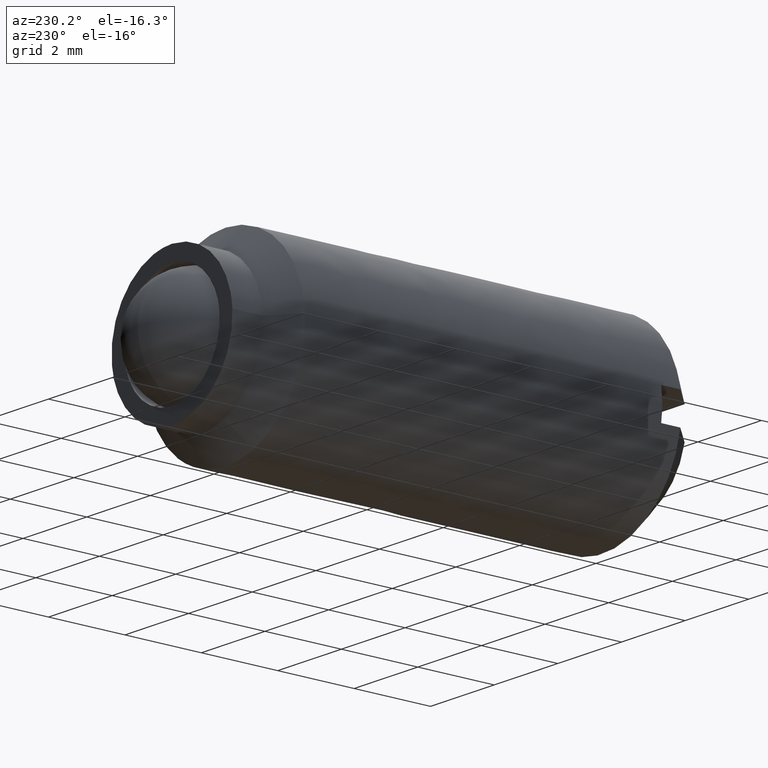
[diagram: clean part render]
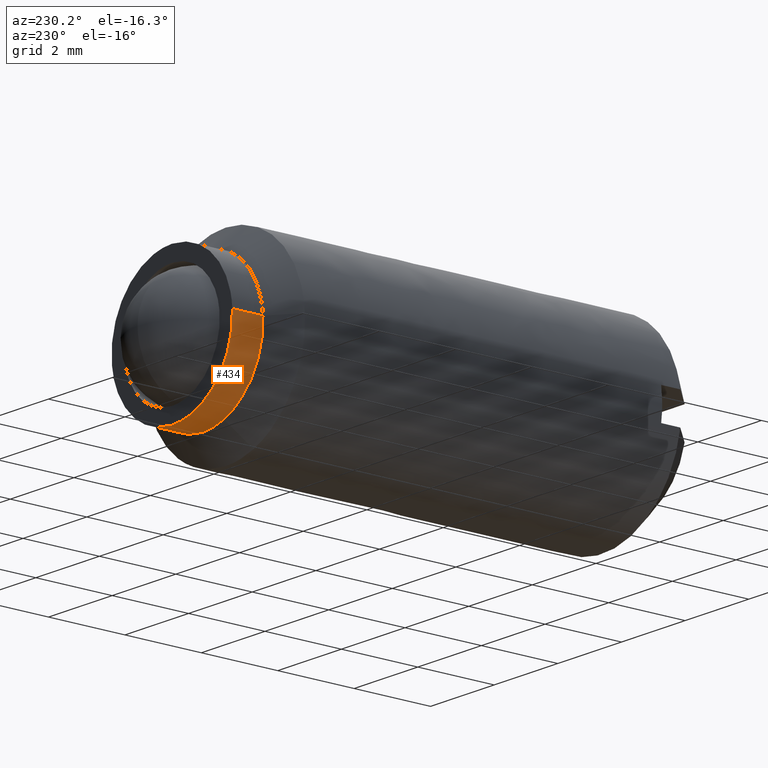
[diagram: same view with one face highlighted and labeled with its STEP entity id]
A machine part, auxiliary view. The second image highlights one B-rep face of the part: STEP entity #434.
In plain terms, the highlighted face is a freeform B-spline surface patch.
Its self-contained STEP definition (entity closure, byte-faithful):
#252=CARTESIAN_POINT('',(1.886718476477220,-0.899999999999935,-0.224261879304770));
#253=VERTEX_POINT('',#252);
#271=CARTESIAN_POINT('',(-1.896456117001057,-0.900000000000000,0.115992225124233));
#272=VERTEX_POINT('',#271);
#286=CARTESIAN_POINT('',(-1.896456117002499,-1.700000000003540,0.115992225129656));
#287=VERTEX_POINT('',#286);
#288=CARTESIAN_POINT('',(-1.896456117001057,-0.900000000000000,0.115992225124233));
#289=CARTESIAN_POINT('',(-1.896456117002499,-1.700000000003540,0.115992225129656));
#290=QUASI_UNIFORM_CURVE('',1,(#288,#289),.UNSPECIFIED.,.F.,.U.);
#291=EDGE_CURVE('',#272,#287,#290,.T.);
#308=CARTESIAN_POINT('',(1.886718471939577,-1.700000000000000,-0.224261917480567));
#309=VERTEX_POINT('',#308);
#325=CARTESIAN_POINT('',(1.886718476477220,-0.899999999999935,-0.224261879304770));
#326=CARTESIAN_POINT('',(1.886718471939577,-1.700000000000000,-0.224261917480567));
#327=QUASI_UNIFORM_CURVE('',1,(#325,#326),.UNSPECIFIED.,.F.,.U.);
#328=EDGE_CURVE('',#253,#309,#327,.T.);
#333=CARTESIAN_POINT('',(-1.894857721785848,-0.880000000000000,0.142125755886582));
#334=CARTESIAN_POINT('',(-1.895654631978397,-0.879999999999999,0.129096389410968));
#335=CARTESIAN_POINT('',(-2.012448342117775,-0.880000000000000,-1.780463891885319));
#336=CARTESIAN_POINT('',(-0.115992225116228,-0.880000000000000,-1.896456117001548));
#337=CARTESIAN_POINT('',(1.674932632595051,-0.880000000000000,-2.005993773791804));
#338=CARTESIAN_POINT('',(1.888303844454935,-0.880000000000000,-0.210924346309455));
#339=CARTESIAN_POINT('',(1.889881066098256,-0.880000000000000,-0.197655347518057));
#340=CARTESIAN_POINT('',(-1.894857721785848,-1.720500000000001,0.142125755886582));
#341=CARTESIAN_POINT('',(-1.895654631978397,-1.720500000000000,0.129096389410968));
#342=CARTESIAN_POINT('',(-2.012448342117775,-1.720500000000000,-1.780463891885319));
#343=CARTESIAN_POINT('',(-0.115992225116228,-1.720500000000000,-1.896456117001548));
#344=CARTESIAN_POINT('',(1.674932632595051,-1.720500000000000,-2.005993773791804));
#345=CARTESIAN_POINT('',(1.888303844454935,-1.720500000000000,-0.210924346309455));
#346=CARTESIAN_POINT('',(1.889881066098256,-1.720500000000001,-0.197655347518057));
#354=(BOUNDED_SURFACE()B_SPLINE_SURFACE(2,1,((#333,#340),(#334,#341),(#335,#342),(#336,#343),(#337,#344),(#338,#345),(#339,#346)),.UNSPECIFIED.,.F.,.F.,.U.)B_SPLINE_SURFACE_WITH_KNOTS((3,1,2,1,3),(2,2),(0.0,0.030850643711267,3.178873717746789,6.200975868820890,6.231830164430668),(0.0,1.0),.UNSPECIFIED.)GEOMETRIC_REPRESENTATION_ITEM()RATIONAL_B_SPLINE_SURFACE(((1.005740710361107,1.005740710361107),(1.002870355180554,1.002870355180554),(0.707106781186548,0.707106781186548),(1.0,1.0),(0.718822509939086,0.718822509939086),(0.980146840153292,0.980146840153292),(0.982787879511457,0.982787879511457)))REPRESENTATION_ITEM('')SURFACE());
#355=CARTESIAN_POINT('',(0.0,-0.900000000000000,-1.900000000000001));
#356=VERTEX_POINT('',#355);
#357=CARTESIAN_POINT('',(0.0,-0.900000000000000,-1.900000000000001));
#358=CARTESIAN_POINT('',(1.687534451488845,-0.900000000000000,-1.900000000000002));
#359=CARTESIAN_POINT('',(1.886718476477220,-0.899999999999935,-0.224261879304770));
#367=(BOUNDED_CURVE()B_SPLINE_CURVE(2,(#357,#358,#359),.UNSPECIFIED.,.F.,.U.)B_SPLINE_CURVE_WITH_KNOTS((3,3),(0.0,0.229562757159565),.UNSPECIFIED.)CURVE()GEOMETRIC_REPRESENTATION_ITEM()RATIONAL_B_SPLINE_CURVE((1.0,0.731050500543376,0.956027310142333))REPRESENTATION_ITEM(''));
#368=EDGE_CURVE('',#356,#253,#367,.T.);
#369=ORIENTED_EDGE('',*,*,#368,.T.);
#370=ORIENTED_EDGE('',*,*,#328,.T.);
#371=CARTESIAN_POINT('',(0.0,-1.700000000000000,-1.900000000000001));
#372=VERTEX_POINT('',#371);
#373=CARTESIAN_POINT('',(0.0,-1.700000000000000,-1.900000000000001));
#374=CARTESIAN_POINT('',(1.687534417102971,-1.700000000000001,-1.900000000000001));
#375=CARTESIAN_POINT('',(1.886718471939578,-1.700000000000000,-0.224261917480567));
#383=(BOUNDED_CURVE()B_SPLINE_CURVE(2,(#373,#374,#375),.UNSPECIFIED.,.F.,.U.)B_SPLINE_CURVE_WITH_KNOTS((3,3),(0.0,0.229562753739958),.UNSPECIFIED.)CURVE()GEOMETRIC_REPRESENTATION_ITEM()RATIONAL_B_SPLINE_CURVE((1.0,0.731050504549695,0.956027303439745))REPRESENTATION_ITEM(''));
#384=EDGE_CURVE('',#372,#309,#383,.T.);
#385=ORIENTED_EDGE('',*,*,#384,.F.);
#386=CARTESIAN_POINT('',(-0.668074151346452,-1.700000000000239,-1.778672799674979));
#387=VERTEX_POINT('',#386);
#388=CARTESIAN_POINT('',(-0.668074151346452,-1.700000000000240,-1.778672799674979));
#389=CARTESIAN_POINT('',(-0.345054033529472,-1.700000000000000,-1.900000000000001));
#390=CARTESIAN_POINT('',(0.0,-1.700000000000000,-1.900000000000001));
#398=(BOUNDED_CURVE()B_SPLINE_CURVE(2,(#388,#389,#390),.UNSPECIFIED.,.F.,.U.)B_SPLINE_CURVE_WITH_KNOTS((3,3),(0.940284170898487,1.0),.UNSPECIFIED.)CURVE()GEOMETRIC_REPRESENTATION_ITEM()RATIONAL_B_SPLINE_CURVE((0.893499554635248,0.930038554401375,1.0))REPRESENTATION_ITEM(''));
#399=EDGE_CURVE('',#387,#372,#398,.T.);
#400=ORIENTED_EDGE('',*,*,#399,.F.);
#401=CARTESIAN_POINT('',(-1.896456117002499,-1.700000000003540,0.115992225129656));
#402=CARTESIAN_POINT('',(-1.900000000000000,-1.700000000000000,0.058050250294034));
#403=CARTESIAN_POINT('',(-1.900000000000000,-1.700000000000000,-8.511014E-016));
#404=CARTESIAN_POINT('',(-1.900000000000000,-1.700000000000000,-1.315958231815637));
#405=CARTESIAN_POINT('',(-0.668074151346452,-1.700000000000239,-1.778672799674979));
#413=(BOUNDED_CURVE()B_SPLINE_CURVE(2,(#401,#402,#403,#404,#405),.UNSPECIFIED.,.F.,.U.)B_SPLINE_CURVE_WITH_KNOTS((3,2,3),(0.739332962237120,0.750000000000000,0.940284170898487),.UNSPECIFIED.)CURVE()GEOMETRIC_REPRESENTATION_ITEM()RATIONAL_B_SPLINE_CURVE((0.976072041662812,0.987502787897702,1.0,0.777068226785173,0.893499554635248))REPRESENTATION_ITEM(''));
#414=EDGE_CURVE('',#287,#387,#413,.T.);
#415=ORIENTED_EDGE('',*,*,#414,.F.);
#416=ORIENTED_EDGE('',*,*,#291,.F.);
#417=CARTESIAN_POINT('',(-1.896456117001057,-0.900000000000000,0.115992225124233));
#418=CARTESIAN_POINT('',(-1.900000000000000,-0.900000000000000,0.058050250275346));
#419=CARTESIAN_POINT('',(-1.900000000000000,-0.900000000000000,-8.511014E-016));
#420=CARTESIAN_POINT('',(-1.900000000000000,-0.900000000000000,-1.900000000000001));
#421=CARTESIAN_POINT('',(0.0,-0.900000000000000,-1.900000000000001));
#429=(BOUNDED_CURVE()B_SPLINE_CURVE(2,(#417,#418,#419,#420,#421),.UNSPECIFIED.,.F.,.U.)B_SPLINE_CURVE_WITH_KNOTS((3,2,3),(0.739332962240511,0.750000000000000,1.0),.UNSPECIFIED.)CURVE()GEOMETRIC_REPRESENTATION_ITEM()RATIONAL_B_SPLINE_CURVE((0.976072041670080,0.987502787901675,1.0,0.707106781186547,1.0))REPRESENTATION_ITEM(''));
#430=EDGE_CURVE('',#272,#356,#429,.T.);
#431=ORIENTED_EDGE('',*,*,#430,.T.);
#432=EDGE_LOOP('',(#369,#370,#385,#400,#415,#416,#431));
#433=FACE_OUTER_BOUND('',#432,.T.);
#434=ADVANCED_FACE('',(#433),#354,.T.);